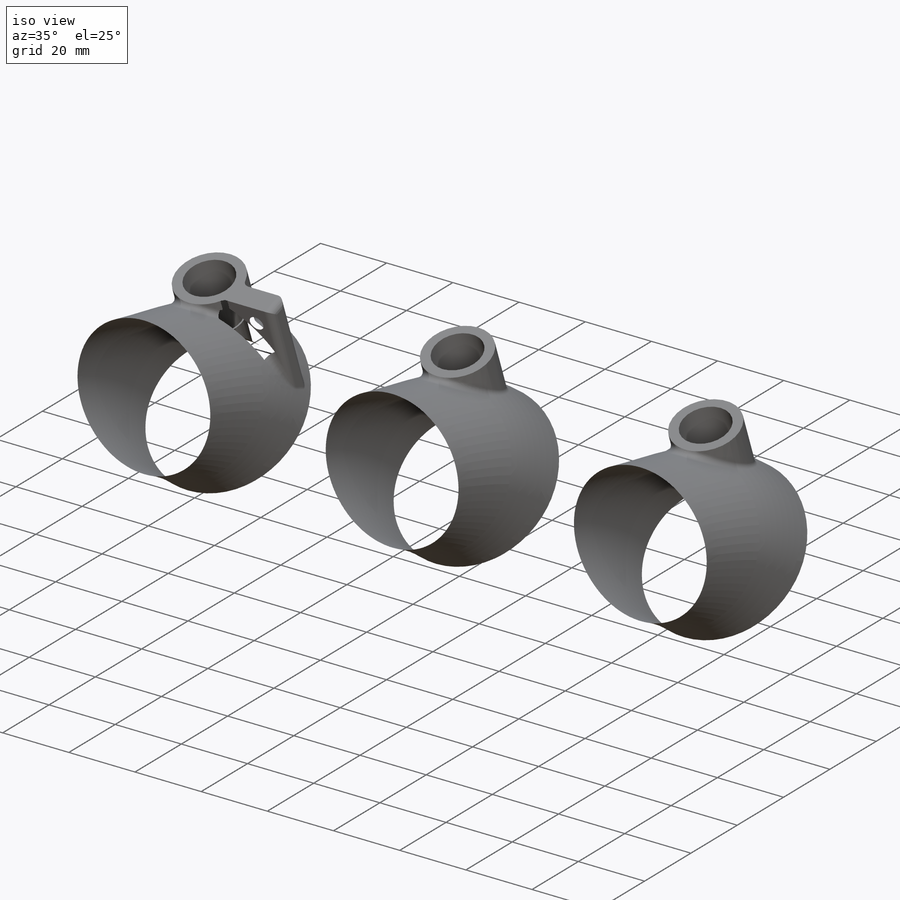
[diagram: iso view]
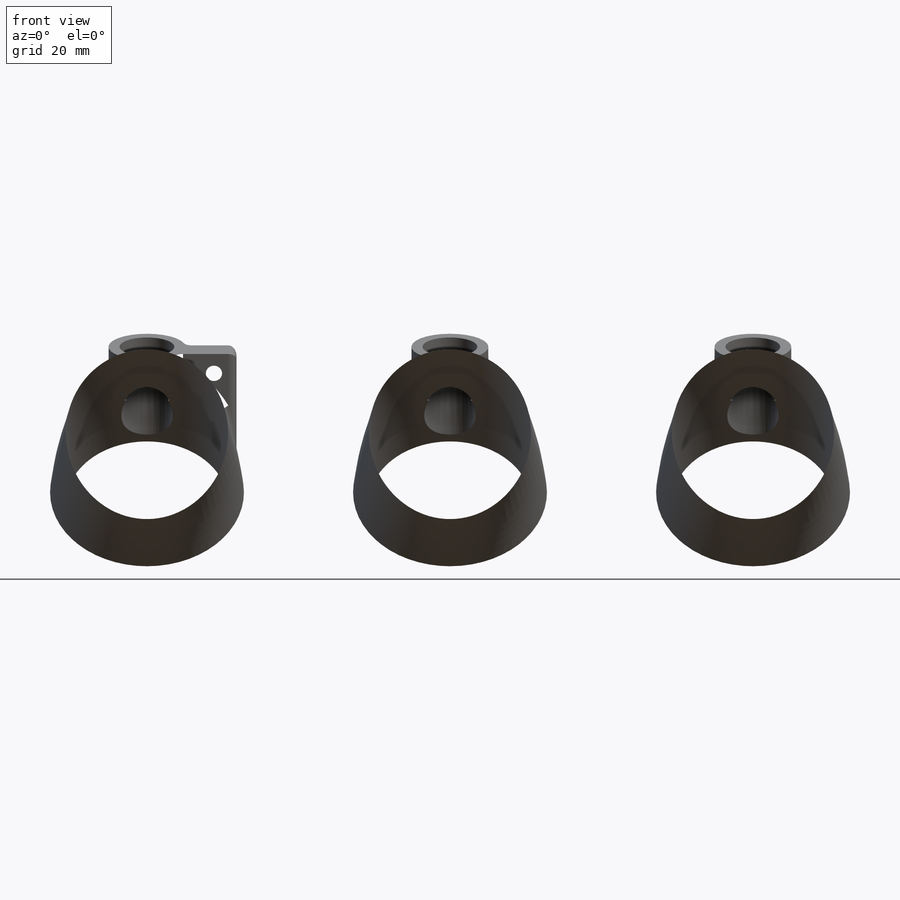
[diagram: front view]
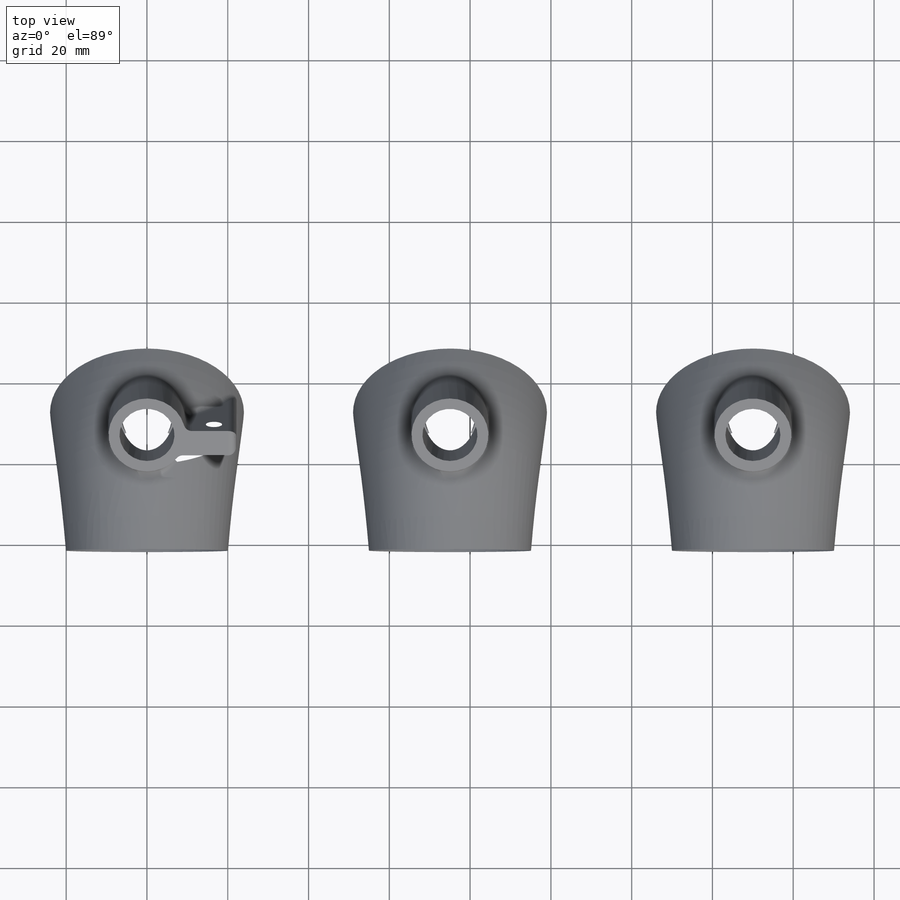
[diagram: top view]
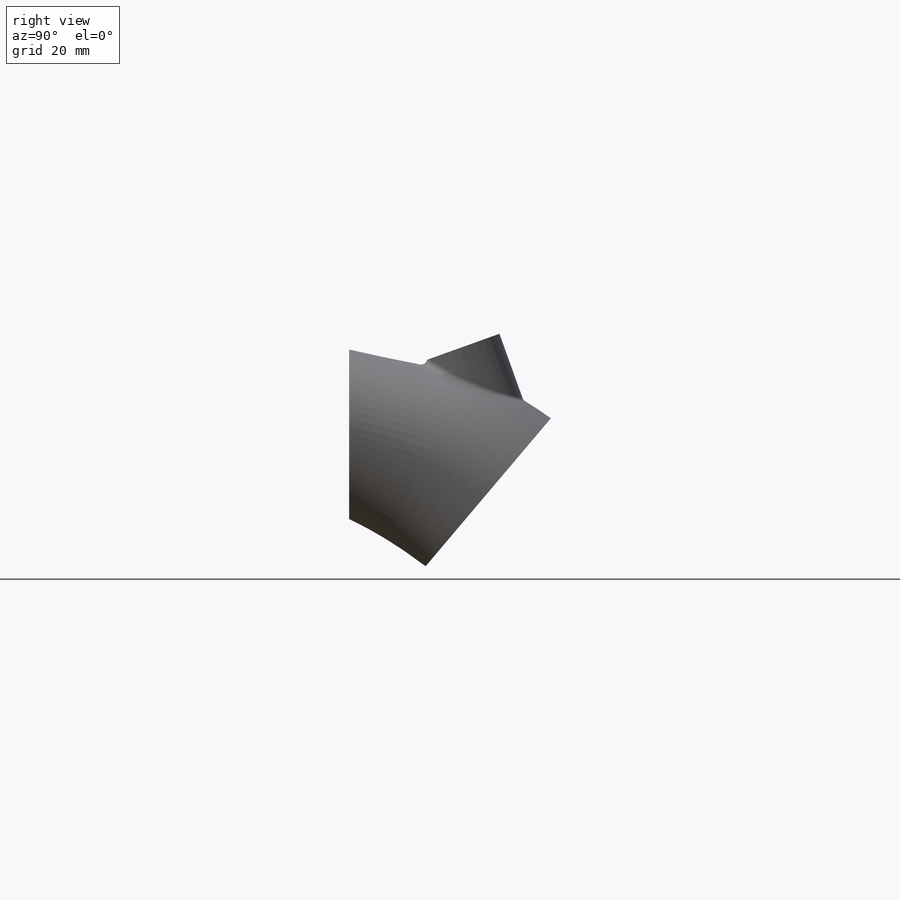
[diagram: right view]
SOLIDWORKS PART (.sldprt)
format: sldprt  version: not decoded by parser v0  size: 2,972,160 bytes
history: native  units: mm
features: sketch x47, plane x16, extrude x15, fillet x10, cut_extrude x10, pattern_linear x4, cut_revolve x4, surface_op x2, thread x2, material x1, helix x1, revolve x1, hole x1 (+21 scaffold rows collapsed; 10 parser-record rows omitted)
feature tree (145):
  scaffold x21  (default folders/planes/origin — collapsed)
  material  "Material <not specified>"
  sketch  "Sketch1"  dims[D1=76.2mm]
  helix  "Helix/Spiral1"  Pitch=152.4mm
  parser-record x10  (decoder bookkeeping rows leaked as tree rows — omitted from the tree; the rows remain in map.json)
  plane  "Plane1"
  plane  "Plane2"
  sketch  "Sketch3"  dims[D1=35.052mm D2=35.0mm]
  sketch  "Sketch62"
  sketch  "Sketch3<3>"
  sketch  "Sketch4"  dims[D1=63.5mm]
  pattern_linear  "LPattern1"  Count1=4 Count2=1 Spacing1=75.0062mm Spacing2=50mm
  surface_op  "Surface-Extrude1"
  surface_op  "Surface-Plane2"
  fillet  "Fillet1"  Radius=7.62mm
  fillet  "Fillet2"  Radius=7.62mm
  plane  "Plane21"  Offset=2.032mm
  plane  "Plane4"
  sketch  "Sketch5"  dims[D1=114.3mm D2=3.5814mm]
  plane  "Plane5"  Offset=2.54mm
  sketch  "Sketch6"  dims[D1=33.9598mm]
  plane  "Plane6"
  sketch  "Sketch7"  dims[D1=24.0mm]
  plane  "Plane22"
  sketch  "Sketch52"
  sketch  "Sketch53"  dims[D1=33.9598mm]
  sketch  "Sketch54"  dims[D1=24.003mm]
  sketch  "Sketch55"
  cut_extrude  "Cut-Extrude10"  [1 undecoded]
  sketch  "Sketch63"  dims[D1=2.54mm]
  extrude  "Boss-Extrude15"  Depth=25.4mm
  sketch  "Sketch8"  dims[D1=40.4876mm D2=3.7592mm D4=75.0062mm D3=4.0]
  extrude  "Boss-Extrude2"  Depth=12.7mm
  plane  "Plane8"
  sketch  "Sketch11"  dims[D8=0.3048mm D1=23.0124mm D2=23.876mm D3=3.2004mm D4=3.0988mm D5=5.0038mm D6=12.7mm D7=2.54mm]
  cut_revolve  "Cut-Revolve1"  Angle=360deg
  pattern_linear  "LPattern2"  Count1=4 Count2=1 Spacing1=75.0062mm Spacing2=50mm
  sketch  "Sketch8<9>"
  cut_revolve  "Cut-Loft2"  [1 undecoded]
  sketch  "Sketch8<10>"
  cut_revolve  "Cut-Loft3"  [1 undecoded]
  sketch  "Sketch8<11>"
  cut_revolve  "Cut-Loft4"  [1 undecoded]
  sketch  "Sketch8<12>"
  plane  "Plane13"  Offset=38.1mm
  sketch  "Sketch18"
  pattern_linear  "LPattern4"  Count1=4 Count2=1 Spacing1=75.0189mm Spacing2=50mm
  sketch  "Sketch13"  dims[c1.D1=39.9796mm c1.D3=5.9944mm c1.D4=11.9888mm c2.D1=~19.454565mm c2.D2=44.0mm]
  extrude  "Throttle/Filter Mount Plate"  Depth=5.08mm
  sketch  "Sketch23"
  cut_extrude  "Cleanup"  Depth=10.16mm
  sketch  "Sketch24"  dims[D1=2.032mm]
  extrude  "Fitment Guide"  Depth=0.762mm
  extrude  "Boss-Extrude13"  [1 undecoded]
  sketch  "Sketch57"  dims[c1.D2=5.9944mm c1.D3=11.9888mm c1.D4=~19.454565mm c1.D1=44.0mm c2.D1=5.08mm c2.D19=0.2032mm]
  sketch  "Sketch58"
  cut_extrude  "Cut-Extrude11"  Depth=5.08mm
  sketch  "Sketch61"  dims[D2=24.13mm D1=2.032mm]
  extrude  "Boss-Extrude14"  Depth=0.762mm
  sketch  "Sketch14"  dims[c1.D1=~12.979655mm c1.D7=1.27mm c2.D1=90.0deg c2.D2=~10.06896mm c2.D3=12.9567mm c3.D2=~9.876538mm c3.D4=~1.959072mm c3.D5=~0.639003mm c3.D6=2.54mm c3.D7=2.54mm c3.D8=2.54mm c3.D9=1.27mm c3.D10=2.54mm c3.D11=3.429mm c4.D8=115.0deg c4.D9=90.0deg]
  plane  "Plane9"  Offset=75.0062mm
  revolve  "Revolve1"  Angle=360deg
  pattern_linear  "LPattern5"  Count1=4 Count2=1 Spacing1=75.0062mm Spacing2=50mm
  sketch  "Sketch19"  dims[c1.D1=~41.362438mm c2.D1=120.0deg c2.D2=45.72mm c2.D3=5.08mm c3.D2=44.45mm]
  plane  "Plane14"
  sketch  "Sketch20"  dims[D1=19.05mm D3=75.0062mm D2=4.0]
  extrude  "Boss-Extrude3"  Depth=2.54mm
  extrude  "Boss-Extrude4"  [1 undecoded]
  sketch  "Sketch20<3>"  dims[D1=2.54mm]
  extrude  "Boss-Extrude5"  [1 undecoded]
  sketch  "Sketch20<4>"  dims[D1=2.54mm]
  extrude  "Boss-Extrude6"  [1 undecoded]
  sketch  "Sketch20<5>"  dims[D1=2.54mm]
  sketch  "Sketch21"  dims[D1=12.7mm D3=75.0062mm D2=4.0]
  cut_extrude  "Cut-Extrude1"  [1 undecoded]
  sketch  "Sketch22"  dims[D1=13.6144mm D3=75.0062mm D2=4.0]
  cut_extrude  "Cut-Extrude2"  Depth=12.7mm
  fillet  "Fillet3"  Radius=1.524mm
  fillet  "Fillet4"  Radius=1.524mm
  fillet  "Fillet5"  Radius=1.5494mm
  fillet  "Fillet6"  Radius=1.778mm
  sketch  "Sketch35"  dims[c1.D3=19.05mm c1.D1=6.35mm c1.D2=12.7mm c2.D3=5.334mm]
  extrude  "Boss-Extrude8"  [1 undecoded]
  fillet  "Fillet7"  Radius=2.032mm
  plane  "Plane18"  Offset=37.5031mm
  sketch  "Sketch36"
  extrude  "Boss-Extrude9"  [1 undecoded]
  fillet  "Fillet8"  Radius=2.032mm
  hole  "#10-32 Tapped Hole1"  Diameter=4.0386mm Depth=32.755637mm
  sketch  "3DSketch5"  dims[c1.D1=~5.686292mm c1.D5=5.588mm c1.D2=~7.522367mm c2.D5=6.35mm c2.D3=5.588mm c2.D4=5.08mm c2.D1=~9.510707mm c2.D2=5.588mm c3.D1=5.588mm]
  sketch  "Sketch37"  dims[hole-wizard template sketch: 60 standard entries collapsed; hole parameters kept: c18.Thru Tap Drill Depth=~32.755637mm]
  thread  "Hole Thread4"  Diameter=7.62mm  [1 undecoded]
  thread  "Hole Thread5"  Diameter=7.62mm  [1 undecoded]
  sketch  "Sketch44"  dims[c1.D2=68.58mm c1.D1=~55.041242mm c2.D1=60.0deg c2.D2=12.7mm c2.D3=~40.694534mm]
  plane  "Plane19"
  sketch  "Sketch38"  dims[D1=7.874mm D2=5.461mm D3=26.0985mm D4=37.5031mm]
  sketch  "Sketch39"  dims[D1=3.81mm D2=5.08mm]
  extrude  "Boss-Extrude10"  [1 undecoded]
  cut_extrude  "Cut-Extrude3"  [1 undecoded]
  sketch  "Sketch41"  dims[D1=3.556mm]
  cut_extrude  "Cut-Extrude4"  Depth=12.7mm
  sketch  "Sketch42"  dims[D2=19.05mm D9=6.5913mm D1=37.465mm D3=44.1071mm D4=~22.05355mm D5=19.558mm D6=9.779mm D10=25.4mm D11=12.7mm D12=75.0062mm D7=2.54mm D8=2.54mm]
  extrude  "Boss-Extrude11"  [1 undecoded]
  sketch  "Sketch50"  dims[D1=12.7mm]
  cut_extrude  "Cut-Extrude8"  [1 undecoded]
  sketch  "Sketch51"  dims[D1=3.556mm]
  cut_extrude  "Cut-Extrude9"  Depth=12.7mm
  fillet  "Fillet10"  Radius=2.54mm
  plane  "Plane20"
  sketch  "Sketch46"  dims[c1.D1=16.51mm c1.D2=5.08mm c1.D3=17.78mm c1.D4=~23.426142mm c1.D5=13.97mm c1.D6=3.175mm c1.D7=2.54mm c2.D4=10.16mm]
  extrude  "Boss-Extrude12"  Depth=12.7mm
  fillet  "Fillet11"  Radius=2.54mm
  sketch  "Sketch49"  dims[D1=0.0mm]
  cut_extrude  "Cut-Extrude7"  Depth=10.16mm
  plane  "Plane24"
  plane  "Logo"  Offset=38.1mm
decode coverage: 68 of 97 modeling features carry decoded parameters
note: ~ marks probable driven/reference dimensions
note: 17 parameter values undecoded
summary: no parameter record found for 15 features
note: suppression state not decoded; provenance and decode notes live in map.json
